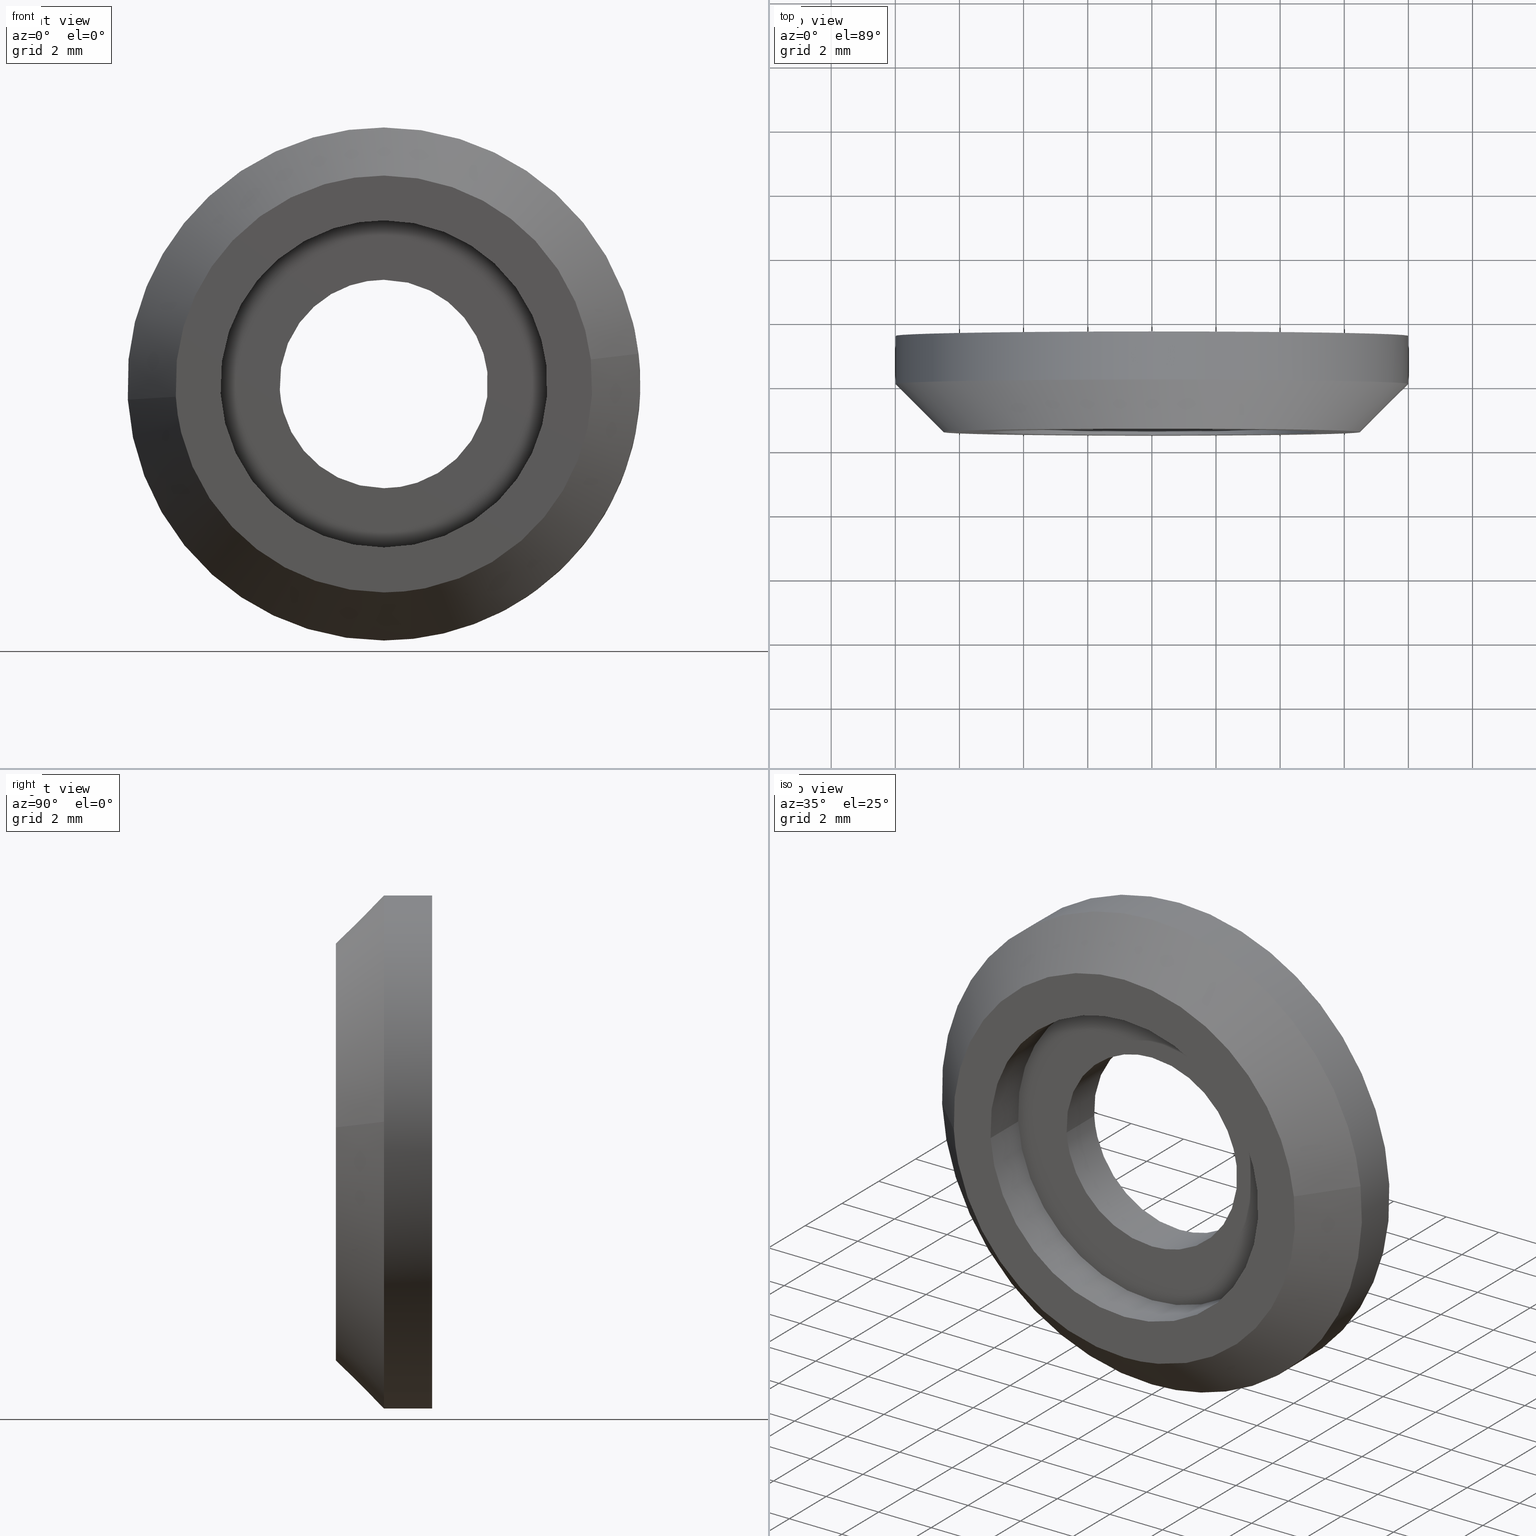
[diagram: canonical four-view strip — front | top / right | iso, engineering-drawing reading convention]
A machine part, canonical four-view strip (front | top / right | iso — engineering-drawing reading convention). The complete STEP part file that produces these views, byte-faithful:
ISO-10303-21;
HEADER;
/****************************************************************
 * Generated by software with PDE/Lib inside                    *
 * PDElib Version 4.4.1-0003, patched  Thursday August 19 11:58 *
 * International Technegroup Inc. (www.iti-oh.com)              *
 ****************************************************************/
FILE_DESCRIPTION((''),'2;1');
FILE_NAME('','2005-10-12T14:39:54',(''),(''),'','CADfix','');
FILE_SCHEMA(('AUTOMOTIVE_DESIGN'));
ENDSEC;
DATA;
#5=APPLICATION_CONTEXT('automotive design');
#6=APPLICATION_PROTOCOL_DEFINITION('Draft International Standard','automotive_design',1998,#5);
#7=PRODUCT_CONTEXT('None',#5,'mechanical');
#8=PRODUCT('facing ring','','None',(#7));
#9=PRODUCT_RELATED_PRODUCT_CATEGORY('part','description',(#8));
#10=PRODUCT_DEFINITION_FORMATION('None','None',#8);
#11=PRODUCT_DEFINITION_CONTEXT('part definition',#5,'design');
#12=PRODUCT_DEFINITION('None','None',#10,#11);
#18=(NAMED_UNIT(*)PLANE_ANGLE_UNIT()SI_UNIT($,.RADIAN.));
#19=DIMENSIONAL_EXPONENTS(0.0,0.0,0.0,0.0,0.0,0.0,0.0);
#20=PLANE_ANGLE_MEASURE_WITH_UNIT(PLANE_ANGLE_MEASURE(0.017453292500000),#18);
#24=(CONVERSION_BASED_UNIT('DEGREE',#20)NAMED_UNIT(#19)PLANE_ANGLE_UNIT());
#28=(NAMED_UNIT(*)SI_UNIT($,.STERADIAN.)SOLID_ANGLE_UNIT());
#32=(LENGTH_UNIT()NAMED_UNIT(*)SI_UNIT(.MILLI.,.METRE.));
#34=UNCERTAINTY_MEASURE_WITH_UNIT(LENGTH_MEASURE(0.001000000000000),#32,'DISTANCE_ACCURACY_VALUE','');
#36=(GEOMETRIC_REPRESENTATION_CONTEXT(3)GLOBAL_UNCERTAINTY_ASSIGNED_CONTEXT((#34))GLOBAL_UNIT_ASSIGNED_CONTEXT((#24,#28,#32))REPRESENTATION_CONTEXT('None','None'));
#37=AXIS2_PLACEMENT_3D('',#38,#39,#40);
#38=CARTESIAN_POINT('',(0.0,0.0,0.0));
#39=DIRECTION('',(0.0,0.0,1.0));
#40=DIRECTION('',(1.0,0.0,0.0));
#41=ADVANCED_BREP_SHAPE_REPRESENTATION('',(#37,#799),#36);
#42=PRODUCT_DEFINITION_SHAPE('','',#12);
#43=SHAPE_DEFINITION_REPRESENTATION(#42,#41);
#44=CARTESIAN_POINT('',(2.812943795132577,-0.037500000000000,-7.489148630213257));
#45=CARTESIAN_POINT('',(1.687915613723266,-0.037500000000000,-7.911712154921204));
#46=CARTESIAN_POINT('',(0.488388316278856,-0.037500000000000,-7.985078387374934));
#47=CARTESIAN_POINT('',(-7.496690071096078,-0.037500000000000,-8.473466703653790));
#48=CARTESIAN_POINT('',(-7.985078387374934,-0.037500000000000,-0.488388316278856));
#49=CARTESIAN_POINT('',(2.812943795132577,1.538437500000001,-7.489148630213257));
#50=CARTESIAN_POINT('',(1.687915613723266,1.538437500000000,-7.911712154921204));
#51=CARTESIAN_POINT('',(0.488388316278856,1.538437500000000,-7.985078387374934));
#52=CARTESIAN_POINT('',(-7.496690071096078,1.538437500000001,-8.473466703653790));
#53=CARTESIAN_POINT('',(-7.985078387374934,1.538437500000000,-0.488388316278856));
#61=(BOUNDED_SURFACE()B_SPLINE_SURFACE(2,1,((#44,#49),(#45,#50),(#46,#51),(#47,#52),(#48,#53)),.UNSPECIFIED.,.F.,.F.,.U.)B_SPLINE_SURFACE_WITH_KNOTS((3,2,3),(2,2),(0.0,2.650966799187807,15.905800795126840),(0.0,1.0),.UNSPECIFIED.)GEOMETRIC_REPRESENTATION_ITEM()RATIONAL_B_SPLINE_SURFACE(((0.906274169979695,0.906274169979695),(0.941421356237309,0.941421356237309),(1.0,1.0),(0.707106781186548,0.707106781186548),(1.0,1.0)))REPRESENTATION_ITEM('')SURFACE());
#62=CARTESIAN_POINT('',(2.812940292168581,2.698153E-014,-7.489149945933818));
#63=VERTEX_POINT('',#62);
#64=CARTESIAN_POINT('',(0.0,0.0,-8.0));
#65=VERTEX_POINT('',#64);
#66=CARTESIAN_POINT('',(2.812940292168581,2.698153E-014,-7.489149945933818));
#67=CARTESIAN_POINT('',(1.452857155873651,0.0,-8.0));
#68=CARTESIAN_POINT('',(0.0,0.0,-8.0));
#76=(BOUNDED_CURVE()B_SPLINE_CURVE(2,(#66,#67,#68),.UNSPECIFIED.,.F.,.U.)B_SPLINE_CURVE_WITH_KNOTS((3,3),(0.440284244778167,0.500000000000000),.UNSPECIFIED.)CURVE()GEOMETRIC_REPRESENTATION_ITEM()RATIONAL_B_SPLINE_CURVE((0.893499645046490,0.930038640956804,1.0))REPRESENTATION_ITEM(''));
#77=EDGE_CURVE('',#63,#65,#76,.T.);
#78=ORIENTED_EDGE('',*,*,#77,.T.);
#79=CARTESIAN_POINT('',(-7.985078387375068,4.340885E-013,-0.488388316280749));
#80=VERTEX_POINT('',#79);
#81=CARTESIAN_POINT('',(0.0,0.0,-8.0));
#82=CARTESIAN_POINT('',(-7.525648535238424,0.0,-8.0));
#83=CARTESIAN_POINT('',(-7.985078387375068,4.340885E-013,-0.488388316280749));
#91=(BOUNDED_CURVE()B_SPLINE_CURVE(2,(#81,#82,#83),.UNSPECIFIED.,.F.,.U.)B_SPLINE_CURVE_WITH_KNOTS((3,3),(0.500000000000000,0.739332962241805),.UNSPECIFIED.)CURVE()GEOMETRIC_REPRESENTATION_ITEM()RATIONAL_B_SPLINE_CURVE((1.0,0.719603993283357,0.976072041672852))REPRESENTATION_ITEM(''));
#92=EDGE_CURVE('',#65,#80,#91,.T.);
#93=ORIENTED_EDGE('',*,*,#92,.T.);
#94=CARTESIAN_POINT('',(-7.985078559988073,1.500000000000000,-0.488385494062622));
#95=VERTEX_POINT('',#94);
#96=CARTESIAN_POINT('',(-7.985078387375068,4.340885E-013,-0.488388316280749));
#97=CARTESIAN_POINT('',(-7.985078559988073,1.500000000000000,-0.488385494062622));
#98=QUASI_UNIFORM_CURVE('',1,(#96,#97),.UNSPECIFIED.,.F.,.U.);
#99=EDGE_CURVE('',#80,#95,#98,.T.);
#100=ORIENTED_EDGE('',*,*,#99,.T.);
#101=CARTESIAN_POINT('',(0.0,1.500000000000000,-8.0));
#102=VERTEX_POINT('',#101);
#103=CARTESIAN_POINT('',(0.0,1.500000000000000,-8.0));
#104=CARTESIAN_POINT('',(-7.525651200053410,1.500000000000001,-8.0));
#105=CARTESIAN_POINT('',(-7.985078559988073,1.500000000000000,-0.488385494062622));
#113=(BOUNDED_CURVE()B_SPLINE_CURVE(2,(#103,#104,#105),.UNSPECIFIED.,.F.,.U.)B_SPLINE_CURVE_WITH_KNOTS((3,3),(0.500000000000000,0.739333023226263),.UNSPECIFIED.)CURVE()GEOMETRIC_REPRESENTATION_ITEM()RATIONAL_B_SPLINE_CURVE((1.0,0.719603921835620,0.976072172374189))REPRESENTATION_ITEM(''));
#114=EDGE_CURVE('',#102,#95,#113,.T.);
#115=ORIENTED_EDGE('',*,*,#114,.F.);
#116=CARTESIAN_POINT('',(2.812940931960092,1.500000000000000,-7.489149705627076));
#117=VERTEX_POINT('',#116);
#118=CARTESIAN_POINT('',(2.812940931960093,1.500000000000000,-7.489149705627076));
#119=CARTESIAN_POINT('',(1.452857508860299,1.500000000000000,-8.0));
#120=CARTESIAN_POINT('',(0.0,1.500000000000000,-8.0));
#128=(BOUNDED_CURVE()B_SPLINE_CURVE(2,(#118,#119,#120),.UNSPECIFIED.,.F.,.U.)B_SPLINE_CURVE_WITH_KNOTS((3,3),(0.440284231284646,0.500000000000000),.UNSPECIFIED.)CURVE()GEOMETRIC_REPRESENTATION_ITEM()RATIONAL_B_SPLINE_CURVE((0.893499628533607,0.930038625148161,1.0))REPRESENTATION_ITEM(''));
#129=EDGE_CURVE('',#117,#102,#128,.T.);
#130=ORIENTED_EDGE('',*,*,#129,.F.);
#131=CARTESIAN_POINT('',(2.812940292168581,2.698153E-014,-7.489149945933818));
#132=CARTESIAN_POINT('',(2.812940931960092,1.500000000000000,-7.489149705627076));
#133=QUASI_UNIFORM_CURVE('',1,(#131,#132),.UNSPECIFIED.,.F.,.U.);
#134=EDGE_CURVE('',#63,#117,#133,.T.);
#135=ORIENTED_EDGE('',*,*,#134,.F.);
#136=EDGE_LOOP('',(#78,#93,#100,#115,#130,#135));
#137=FACE_OUTER_BOUND('',#136,.T.);
#138=ADVANCED_FACE('',(#137),#61,.T.);
#139=CARTESIAN_POINT('',(-7.985078387374934,-0.037500000000000,-0.488388316278856));
#140=CARTESIAN_POINT('',(-8.473466703653790,-0.037500000000000,7.496690071096078));
#141=CARTESIAN_POINT('',(-0.488388316278856,-0.037500000000000,7.985078387374934));
#142=CARTESIAN_POINT('',(7.496690071096078,-0.037500000000000,8.473466703653790));
#143=CARTESIAN_POINT('',(7.985078387374934,-0.037500000000000,0.488388316278856));
#144=CARTESIAN_POINT('',(8.345897782954735,-0.037500000000000,-5.410956654424521));
#145=CARTESIAN_POINT('',(2.812943795132577,-0.037500000000000,-7.489148630213257));
#146=CARTESIAN_POINT('',(-7.985078387374934,1.538437500000000,-0.488388316278856));
#147=CARTESIAN_POINT('',(-8.473466703653790,1.538437500000001,7.496690071096078));
#148=CARTESIAN_POINT('',(-0.488388316278856,1.538437500000000,7.985078387374934));
#149=CARTESIAN_POINT('',(7.496690071096078,1.538437500000001,8.473466703653790));
#150=CARTESIAN_POINT('',(7.985078387374934,1.538437500000000,0.488388316278856));
#151=CARTESIAN_POINT('',(8.345897782954735,1.538437500000001,-5.410956654424521));
#152=CARTESIAN_POINT('',(2.812943795132577,1.538437500000001,-7.489148630213257));
#160=(BOUNDED_SURFACE()B_SPLINE_SURFACE(2,1,((#139,#146),(#140,#147),(#141,#148),(#142,#149),(#143,#150),(#144,#151),(#145,#152)),.UNSPECIFIED.,.F.,.F.,.U.)B_SPLINE_SURFACE_WITH_KNOTS((3,2,2,3),(2,2),(0.0,13.254833995939039,26.509667991878072,37.113535188629299),(0.0,1.0),.UNSPECIFIED.)GEOMETRIC_REPRESENTATION_ITEM()RATIONAL_B_SPLINE_SURFACE(((1.0,1.0),(0.707106781186548,0.707106781186548),(1.0,1.0),(0.707106781186548,0.707106781186548),(1.0,1.0),(0.765685424949238,0.765685424949238),(0.906274169979695,0.906274169979695)))REPRESENTATION_ITEM('')SURFACE());
#161=CARTESIAN_POINT('',(7.944076210909435,1.578722E-012,0.944273877266574));
#162=VERTEX_POINT('',#161);
#163=CARTESIAN_POINT('',(7.944076210909435,1.578722E-012,0.944273877266574));
#164=CARTESIAN_POINT('',(8.0,0.0,0.473792957227731));
#165=CARTESIAN_POINT('',(8.0,0.0,0.0));
#166=CARTESIAN_POINT('',(8.0,0.0,-5.540879534021689));
#167=CARTESIAN_POINT('',(2.812940292168581,2.698153E-014,-7.489149945933818));
#175=(BOUNDED_CURVE()B_SPLINE_CURVE(2,(#163,#164,#165,#166,#167),.UNSPECIFIED.,.F.,.U.)B_SPLINE_CURVE_WITH_KNOTS((3,2,3),(0.229562473515120,0.250000000000000,0.440284244778167),.UNSPECIFIED.)CURVE()GEOMETRIC_REPRESENTATION_ITEM()RATIONAL_B_SPLINE_CURVE((0.956026754186858,0.976055948333033,1.0,0.777068140229744,0.893499645046490))REPRESENTATION_ITEM(''));
#176=EDGE_CURVE('',#162,#63,#175,.T.);
#177=ORIENTED_EDGE('',*,*,#176,.T.);
#178=ORIENTED_EDGE('',*,*,#134,.T.);
#179=CARTESIAN_POINT('',(0.0,1.500000000000000,8.0));
#180=VERTEX_POINT('',#179);
#181=CARTESIAN_POINT('',(0.0,1.500000000000000,8.0));
#182=CARTESIAN_POINT('',(8.0,1.500000000000000,8.0));
#183=CARTESIAN_POINT('',(8.0,1.500000000000000,0.0));
#184=CARTESIAN_POINT('',(8.000000000000002,1.500000000000000,-5.540879028380970));
#185=CARTESIAN_POINT('',(2.812940931960093,1.500000000000000,-7.489149705627076));
#193=(BOUNDED_CURVE()B_SPLINE_CURVE(2,(#181,#182,#183,#184,#185),.UNSPECIFIED.,.F.,.U.)B_SPLINE_CURVE_WITH_KNOTS((3,2,3),(0.0,0.250000000000000,0.440284231284646),.UNSPECIFIED.)CURVE()GEOMETRIC_REPRESENTATION_ITEM()RATIONAL_B_SPLINE_CURVE((1.0,0.707106781186548,1.0,0.777068156038386,0.893499628533607))REPRESENTATION_ITEM(''));
#194=EDGE_CURVE('',#180,#117,#193,.T.);
#195=ORIENTED_EDGE('',*,*,#194,.F.);
#196=CARTESIAN_POINT('',(-7.985078559988073,1.500000000000000,-0.488385494062622));
#197=CARTESIAN_POINT('',(-8.0,1.500000000000000,-0.244420691324024));
#198=CARTESIAN_POINT('',(-8.0,1.500000000000000,0.0));
#199=CARTESIAN_POINT('',(-8.0,1.500000000000000,8.0));
#200=CARTESIAN_POINT('',(0.0,1.500000000000000,8.0));
#208=(BOUNDED_CURVE()B_SPLINE_CURVE(2,(#196,#197,#198,#199,#200),.UNSPECIFIED.,.F.,.U.)B_SPLINE_CURVE_WITH_KNOTS((3,2,3),(0.739333023226263,0.750000000000000,1.0),.UNSPECIFIED.)CURVE()GEOMETRIC_REPRESENTATION_ITEM()RATIONAL_B_SPLINE_CURVE((0.976072172374189,0.987502859350927,1.0,0.707106781186548,1.0))REPRESENTATION_ITEM(''));
#209=EDGE_CURVE('',#95,#180,#208,.T.);
#210=ORIENTED_EDGE('',*,*,#209,.F.);
#211=ORIENTED_EDGE('',*,*,#99,.F.);
#212=CARTESIAN_POINT('',(0.0,0.0,8.0));
#213=VERTEX_POINT('',#212);
#214=CARTESIAN_POINT('',(-7.985078387375068,4.340885E-013,-0.488388316280749));
#215=CARTESIAN_POINT('',(-7.999999999999999,0.0,-0.244422106392477));
#216=CARTESIAN_POINT('',(-8.0,0.0,0.0));
#217=CARTESIAN_POINT('',(-8.0,0.0,8.0));
#218=CARTESIAN_POINT('',(0.0,0.0,8.0));
#226=(BOUNDED_CURVE()B_SPLINE_CURVE(2,(#214,#215,#216,#217,#218),.UNSPECIFIED.,.F.,.U.)B_SPLINE_CURVE_WITH_KNOTS((3,2,3),(0.739332962241806,0.750000000000000,1.0),.UNSPECIFIED.)CURVE()GEOMETRIC_REPRESENTATION_ITEM()RATIONAL_B_SPLINE_CURVE((0.976072041672854,0.987502787903192,1.0,0.707106781186548,1.0))REPRESENTATION_ITEM(''));
#227=EDGE_CURVE('',#80,#213,#226,.T.);
#228=ORIENTED_EDGE('',*,*,#227,.T.);
#229=CARTESIAN_POINT('',(0.0,0.0,8.0));
#230=CARTESIAN_POINT('',(7.105396207588751,0.0,8.0));
#231=CARTESIAN_POINT('',(7.944076210909435,1.578722E-012,0.944273877266574));
#239=(BOUNDED_CURVE()B_SPLINE_CURVE(2,(#229,#230,#231),.UNSPECIFIED.,.F.,.U.)B_SPLINE_CURVE_WITH_KNOTS((3,3),(0.0,0.229562473515120),.UNSPECIFIED.)CURVE()GEOMETRIC_REPRESENTATION_ITEM()RATIONAL_B_SPLINE_CURVE((1.0,0.731050832853514,0.956026754186859))REPRESENTATION_ITEM(''));
#240=EDGE_CURVE('',#213,#162,#239,.T.);
#241=ORIENTED_EDGE('',*,*,#240,.T.);
#242=EDGE_LOOP('',(#177,#178,#195,#210,#211,#228,#241));
#243=FACE_OUTER_BOUND('',#242,.T.);
#244=ADVANCED_FACE('',(#243),#160,.T.);
#245=CARTESIAN_POINT('',(3.227280960681916,-0.037500000000000,0.383611262634465));
#246=CARTESIAN_POINT('',(3.238259750207968,-0.037500000000000,0.291247868073427));
#247=CARTESIAN_POINT('',(3.243938094871067,-0.037500000000000,0.198407753488285));
#248=CARTESIAN_POINT('',(3.442345848359353,-0.037500000000000,-3.045530341382781));
#249=CARTESIAN_POINT('',(0.198407753488285,-0.037500000000000,-3.243938094871067));
#250=CARTESIAN_POINT('',(-3.045530341382781,-0.037500000000000,-3.442345848359353));
#251=CARTESIAN_POINT('',(-3.243938094871067,-0.037500000000000,-0.198407753488285));
#252=CARTESIAN_POINT('',(3.227280960681916,1.538437500000000,0.383611262634465));
#253=CARTESIAN_POINT('',(3.238259750207968,1.538437500000001,0.291247868073427));
#254=CARTESIAN_POINT('',(3.243938094871067,1.538437500000000,0.198407753488285));
#255=CARTESIAN_POINT('',(3.442345848359353,1.538437500000001,-3.045530341382781));
#256=CARTESIAN_POINT('',(0.198407753488285,1.538437500000000,-3.243938094871067));
#257=CARTESIAN_POINT('',(-3.045530341382781,1.538437500000001,-3.442345848359353));
#258=CARTESIAN_POINT('',(-3.243938094871067,1.538437500000000,-0.198407753488285));
#266=(BOUNDED_SURFACE()B_SPLINE_SURFACE(2,1,((#245,#252),(#246,#253),(#247,#254),(#248,#255),(#249,#256),(#250,#257),(#251,#258)),.UNSPECIFIED.,.F.,.F.,.U.)B_SPLINE_SURFACE_WITH_KNOTS((3,2,2,3),(2,2),(0.0,0.215391052434010,5.600167363284244,10.984943674134479),(0.0,1.0),.UNSPECIFIED.)GEOMETRIC_REPRESENTATION_ITEM()RATIONAL_B_SPLINE_SURFACE(((0.977505800795127,0.977505800795127),(0.988284271247462,0.988284271247462),(1.0,1.0),(0.707106781186548,0.707106781186548),(1.0,1.0),(0.707106781186548,0.707106781186548),(1.0,1.0)))REPRESENTATION_ITEM('')SURFACE());
#267=CARTESIAN_POINT('',(3.227281486811727,1.500000000000071,0.383606836308235));
#268=VERTEX_POINT('',#267);
#269=CARTESIAN_POINT('',(0.0,1.500000000000000,-3.250000000000000));
#270=VERTEX_POINT('',#269);
#271=CARTESIAN_POINT('',(3.227281486811727,1.500000000000071,0.383606836308235));
#272=CARTESIAN_POINT('',(3.250000000000000,1.500000000000000,0.192476152308770));
#273=CARTESIAN_POINT('',(3.250000000000000,1.500000000000000,0.0));
#274=CARTESIAN_POINT('',(3.250000000000000,1.500000000000000,-3.250000000000000));
#275=CARTESIAN_POINT('',(0.0,1.500000000000000,-3.250000000000000));
#283=(BOUNDED_CURVE()B_SPLINE_CURVE(2,(#271,#272,#273,#274,#275),.UNSPECIFIED.,.F.,.U.)B_SPLINE_CURVE_WITH_KNOTS((3,2,3),(0.229562705309400,0.250000000000000,0.500000000000000),.UNSPECIFIED.)CURVE()GEOMETRIC_REPRESENTATION_ITEM()RATIONAL_B_SPLINE_CURVE((0.956027208513637,0.976056219896924,1.0,0.707106781186547,1.0))REPRESENTATION_ITEM(''));
#284=EDGE_CURVE('',#268,#270,#283,.T.);
#285=ORIENTED_EDGE('',*,*,#284,.T.);
#286=CARTESIAN_POINT('',(-3.243938286670342,1.499999999999952,-0.198404617548119));
#287=VERTEX_POINT('',#286);
#288=CARTESIAN_POINT('',(0.0,1.500000000000000,-3.250000000000000));
#289=CARTESIAN_POINT('',(-3.057297678478167,1.500000000000000,-3.250000000000000));
#290=CARTESIAN_POINT('',(-3.243938286670342,1.499999999999951,-0.198404617548119));
#298=(BOUNDED_CURVE()B_SPLINE_CURVE(2,(#288,#289,#290),.UNSPECIFIED.,.F.,.U.)B_SPLINE_CURVE_WITH_KNOTS((3,3),(0.500000000000000,0.739333129044312),.UNSPECIFIED.)CURVE()GEOMETRIC_REPRESENTATION_ITEM()RATIONAL_B_SPLINE_CURVE((1.0,0.719603797862065,0.976072399162636))REPRESENTATION_ITEM(''));
#299=EDGE_CURVE('',#270,#287,#298,.T.);
#300=ORIENTED_EDGE('',*,*,#299,.T.);
#301=CARTESIAN_POINT('',(-3.243938284306497,3.469447E-017,-0.198404656197849));
#302=VERTEX_POINT('',#301);
#303=CARTESIAN_POINT('',(-3.243938284306497,3.469447E-017,-0.198404656197849));
#304=CARTESIAN_POINT('',(-3.243938286670342,1.499999999999952,-0.198404617548119));
#305=QUASI_UNIFORM_CURVE('',1,(#303,#304),.UNSPECIFIED.,.F.,.U.);
#306=EDGE_CURVE('',#302,#287,#305,.T.);
#307=ORIENTED_EDGE('',*,*,#306,.F.);
#308=CARTESIAN_POINT('',(0.0,0.0,-3.250000000000000));
#309=VERTEX_POINT('',#308);
#310=CARTESIAN_POINT('',(0.0,0.0,-3.250000000000000));
#311=CARTESIAN_POINT('',(-3.057297641984092,0.0,-3.250000000000000));
#312=CARTESIAN_POINT('',(-3.243938284306497,3.469447E-017,-0.198404656197849));
#320=(BOUNDED_CURVE()B_SPLINE_CURVE(2,(#310,#311,#312),.UNSPECIFIED.,.F.,.U.)B_SPLINE_CURVE_WITH_KNOTS((3,3),(0.500000000000000,0.739333126988512),.UNSPECIFIED.)CURVE()GEOMETRIC_REPRESENTATION_ITEM()RATIONAL_B_SPLINE_CURVE((1.0,0.719603800270584,0.976072394756659))REPRESENTATION_ITEM(''));
#321=EDGE_CURVE('',#309,#302,#320,.T.);
#322=ORIENTED_EDGE('',*,*,#321,.F.);
#323=CARTESIAN_POINT('',(3.227281480315944,3.194357E-017,0.383606890957840));
#324=VERTEX_POINT('',#323);
#325=CARTESIAN_POINT('',(3.227281480315944,3.194357E-017,0.383606890957840));
#326=CARTESIAN_POINT('',(3.250000000000000,0.0,0.192476179922436));
#327=CARTESIAN_POINT('',(3.250000000000000,0.0,0.0));
#328=CARTESIAN_POINT('',(3.250000000000000,0.0,-3.250000000000000));
#329=CARTESIAN_POINT('',(0.0,0.0,-3.250000000000000));
#337=(BOUNDED_CURVE()B_SPLINE_CURVE(2,(#325,#326,#327,#328,#329),.UNSPECIFIED.,.F.,.U.)B_SPLINE_CURVE_WITH_KNOTS((3,2,3),(0.229562702447560,0.250000000000000,0.500000000000000),.UNSPECIFIED.)CURVE()GEOMETRIC_REPRESENTATION_ITEM()RATIONAL_B_SPLINE_CURVE((0.956027202904301,0.976056216544070,1.0,0.707106781186547,1.0))REPRESENTATION_ITEM(''));
#338=EDGE_CURVE('',#324,#309,#337,.T.);
#339=ORIENTED_EDGE('',*,*,#338,.F.);
#340=CARTESIAN_POINT('',(3.227281480315944,3.194357E-017,0.383606890957840));
#341=CARTESIAN_POINT('',(3.227281486811727,1.500000000000071,0.383606836308235));
#342=QUASI_UNIFORM_CURVE('',1,(#340,#341),.UNSPECIFIED.,.F.,.U.);
#343=EDGE_CURVE('',#324,#268,#342,.T.);
#344=ORIENTED_EDGE('',*,*,#343,.T.);
#345=EDGE_LOOP('',(#285,#300,#307,#322,#339,#344));
#346=FACE_OUTER_BOUND('',#345,.T.);
#347=ADVANCED_FACE('',(#346),#266,.F.);
#348=CARTESIAN_POINT('',(-3.243938094871067,-0.037500000000000,-0.198407753488285));
#349=CARTESIAN_POINT('',(-3.442345848359353,-0.037500000000000,3.045530341382781));
#350=CARTESIAN_POINT('',(-0.198407753488285,-0.037500000000000,3.243938094871067));
#351=CARTESIAN_POINT('',(2.865016345228379,-0.037500000000000,3.431305139380714));
#352=CARTESIAN_POINT('',(3.227280960681916,-0.037500000000000,0.383611262634465));
#353=CARTESIAN_POINT('',(-3.243938094871067,1.538437500000000,-0.198407753488285));
#354=CARTESIAN_POINT('',(-3.442345848359353,1.538437500000001,3.045530341382781));
#355=CARTESIAN_POINT('',(-0.198407753488285,1.538437500000000,3.243938094871067));
#356=CARTESIAN_POINT('',(2.865016345228379,1.538437500000000,3.431305139380714));
#357=CARTESIAN_POINT('',(3.227280960681916,1.538437500000000,0.383611262634465));
#365=(BOUNDED_SURFACE()B_SPLINE_SURFACE(2,1,((#348,#353),(#349,#354),(#350,#355),(#351,#356),(#352,#357)),.UNSPECIFIED.,.F.,.F.,.U.)B_SPLINE_SURFACE_WITH_KNOTS((3,2,3),(2,2),(0.0,5.384776310850235,10.554161569266460),(0.0,1.0),.UNSPECIFIED.)GEOMETRIC_REPRESENTATION_ITEM()RATIONAL_B_SPLINE_SURFACE(((1.0,1.0),(0.707106781186548,0.707106781186548),(1.0,1.0),(0.718822509939086,0.718822509939086),(0.977505800795127,0.977505800795127)))REPRESENTATION_ITEM('')SURFACE());
#366=CARTESIAN_POINT('',(0.0,1.500000000000000,3.250000000000000));
#367=VERTEX_POINT('',#366);
#368=CARTESIAN_POINT('',(0.0,1.500000000000000,3.250000000000000));
#369=CARTESIAN_POINT('',(2.886571196239680,1.500000000000001,3.250000000000000));
#370=CARTESIAN_POINT('',(3.227281486811727,1.500000000000071,0.383606836308235));
#378=(BOUNDED_CURVE()B_SPLINE_CURVE(2,(#368,#369,#370),.UNSPECIFIED.,.F.,.U.)B_SPLINE_CURVE_WITH_KNOTS((3,3),(0.0,0.229562705309400),.UNSPECIFIED.)CURVE()GEOMETRIC_REPRESENTATION_ITEM()RATIONAL_B_SPLINE_CURVE((1.0,0.731050561289623,0.956027208513637))REPRESENTATION_ITEM(''));
#379=EDGE_CURVE('',#367,#268,#378,.T.);
#380=ORIENTED_EDGE('',*,*,#379,.T.);
#381=ORIENTED_EDGE('',*,*,#343,.F.);
#382=CARTESIAN_POINT('',(0.0,0.0,3.250000000000000));
#383=VERTEX_POINT('',#382);
#384=CARTESIAN_POINT('',(0.0,0.0,3.250000000000000));
#385=CARTESIAN_POINT('',(2.886571147015454,0.0,3.250000000000000));
#386=CARTESIAN_POINT('',(3.227281480315944,3.194357E-017,0.383606890957840));
#394=(BOUNDED_CURVE()B_SPLINE_CURVE(2,(#384,#385,#386),.UNSPECIFIED.,.F.,.U.)B_SPLINE_CURVE_WITH_KNOTS((3,3),(0.0,0.229562702447560),.UNSPECIFIED.)CURVE()GEOMETRIC_REPRESENTATION_ITEM()RATIONAL_B_SPLINE_CURVE((1.0,0.731050564642477,0.956027202904301))REPRESENTATION_ITEM(''));
#395=EDGE_CURVE('',#383,#324,#394,.T.);
#396=ORIENTED_EDGE('',*,*,#395,.F.);
#397=CARTESIAN_POINT('',(-3.243938284306497,3.469447E-017,-0.198404656197849));
#398=CARTESIAN_POINT('',(-3.250000000000000,0.0,-0.099294927733059));
#399=CARTESIAN_POINT('',(-3.250000000000000,0.0,0.0));
#400=CARTESIAN_POINT('',(-3.250000000000000,0.0,3.250000000000000));
#401=CARTESIAN_POINT('',(0.0,0.0,3.250000000000000));
#409=(BOUNDED_CURVE()B_SPLINE_CURVE(2,(#397,#398,#399,#400,#401),.UNSPECIFIED.,.F.,.U.)B_SPLINE_CURVE_WITH_KNOTS((3,2,3),(0.739333126988512,0.750000000000000,1.0),.UNSPECIFIED.)CURVE()GEOMETRIC_REPRESENTATION_ITEM()RATIONAL_B_SPLINE_CURVE((0.976072394756659,0.987502980915963,1.0,0.707106781186547,1.0))REPRESENTATION_ITEM(''));
#410=EDGE_CURVE('',#302,#383,#409,.T.);
#411=ORIENTED_EDGE('',*,*,#410,.F.);
#412=ORIENTED_EDGE('',*,*,#306,.T.);
#413=CARTESIAN_POINT('',(-3.243938286670342,1.499999999999951,-0.198404617548119));
#414=CARTESIAN_POINT('',(-3.250000000000000,1.500000000000000,-0.099294908354011));
#415=CARTESIAN_POINT('',(-3.250000000000000,1.500000000000000,0.0));
#416=CARTESIAN_POINT('',(-3.250000000000000,1.500000000000000,3.250000000000000));
#417=CARTESIAN_POINT('',(0.0,1.500000000000000,3.250000000000000));
#425=(BOUNDED_CURVE()B_SPLINE_CURVE(2,(#413,#414,#415,#416,#417),.UNSPECIFIED.,.F.,.U.)B_SPLINE_CURVE_WITH_KNOTS((3,2,3),(0.739333129044312,0.750000000000000,1.0),.UNSPECIFIED.)CURVE()GEOMETRIC_REPRESENTATION_ITEM()RATIONAL_B_SPLINE_CURVE((0.976072399162636,0.987502983324483,1.0,0.707106781186547,1.0))REPRESENTATION_ITEM(''));
#426=EDGE_CURVE('',#287,#367,#425,.T.);
#427=ORIENTED_EDGE('',*,*,#426,.T.);
#428=EDGE_LOOP('',(#380,#381,#396,#411,#412,#427));
#429=FACE_OUTER_BOUND('',#428,.T.);
#430=ADVANCED_FACE('',(#429),#365,.F.);
#431=CARTESIAN_POINT('',(5.064348584454699,-1.537500000000001,0.601974596749468));
#432=CARTESIAN_POINT('',(5.081576838787889,-1.537500000000000,0.457035116053686));
#433=CARTESIAN_POINT('',(5.090487471951521,-1.537500000000000,0.311347551627771));
#434=CARTESIAN_POINT('',(5.401835023579292,-1.537500000000000,-4.779139920323751));
#435=CARTESIAN_POINT('',(0.311347551627771,-1.537500000000000,-5.090487471951521));
#436=CARTESIAN_POINT('',(-4.779139920323751,-1.537500000000000,-5.401835023579292));
#437=CARTESIAN_POINT('',(-5.090487471951521,-1.537500000000000,-0.311347551627771));
#438=CARTESIAN_POINT('',(5.064348584454699,0.038437500000000,0.601974596749468));
#439=CARTESIAN_POINT('',(5.081576838787889,0.038437500000000,0.457035116053686));
#440=CARTESIAN_POINT('',(5.090487471951521,0.038437500000000,0.311347551627771));
#441=CARTESIAN_POINT('',(5.401835023579292,0.038437500000000,-4.779139920323751));
#442=CARTESIAN_POINT('',(0.311347551627771,0.038437500000000,-5.090487471951521));
#443=CARTESIAN_POINT('',(-4.779139920323751,0.038437500000000,-5.401835023579292));
#444=CARTESIAN_POINT('',(-5.090487471951521,0.038437500000000,-0.311347551627771));
#452=(BOUNDED_SURFACE()B_SPLINE_SURFACE(2,1,((#431,#438),(#432,#439),(#433,#440),(#434,#441),(#435,#442),(#436,#443),(#437,#444)),.UNSPECIFIED.,.F.,.F.,.U.)B_SPLINE_SURFACE_WITH_KNOTS((3,2,2,3),(2,2),(0.0,0.337998266896446,8.787954939307584,17.237911611718719),(0.0,1.0),.UNSPECIFIED.)GEOMETRIC_REPRESENTATION_ITEM()RATIONAL_B_SPLINE_SURFACE(((0.977505800795127,0.977505800795127),(0.988284271247462,0.988284271247462),(1.0,1.0),(0.707106781186548,0.707106781186548),(1.0,1.0),(0.707106781186548,0.707106781186548),(1.0,1.0)))REPRESENTATION_ITEM('')SURFACE());
#453=CARTESIAN_POINT('',(5.064348875071119,-2.917867E-014,0.601972151814212));
#454=VERTEX_POINT('',#453);
#455=CARTESIAN_POINT('',(0.0,0.0,-5.100000000000001));
#456=VERTEX_POINT('',#455);
#457=CARTESIAN_POINT('',(5.064348875071119,-2.917867E-014,0.601972151814212));
#458=CARTESIAN_POINT('',(5.100000000000001,0.0,0.302041774833430));
#459=CARTESIAN_POINT('',(5.100000000000001,0.0,0.0));
#460=CARTESIAN_POINT('',(5.100000000000001,0.0,-5.100000000000001));
#461=CARTESIAN_POINT('',(0.0,0.0,-5.100000000000001));
#469=(BOUNDED_CURVE()B_SPLINE_CURVE(2,(#457,#458,#459,#460,#461),.UNSPECIFIED.,.F.,.U.)B_SPLINE_CURVE_WITH_KNOTS((3,2,3),(0.229562555106003,0.250000000000000,0.500000000000000),.UNSPECIFIED.)CURVE()GEOMETRIC_REPRESENTATION_ITEM()RATIONAL_B_SPLINE_CURVE((0.956026914108389,0.976056043922698,1.0,0.707106781186548,1.0))REPRESENTATION_ITEM(''));
#470=EDGE_CURVE('',#454,#456,#469,.T.);
#471=ORIENTED_EDGE('',*,*,#470,.T.);
#472=CARTESIAN_POINT('',(-5.090487553960555,9.225259E-015,-0.311346210786117));
#473=VERTEX_POINT('',#472);
#474=CARTESIAN_POINT('',(0.0,0.0,-5.100000000000001));
#475=CARTESIAN_POINT('',(-4.797602207275556,0.0,-5.100000000000001));
#476=CARTESIAN_POINT('',(-5.090487553960555,9.225259E-015,-0.311346210786117));
#484=(BOUNDED_CURVE()B_SPLINE_CURVE(2,(#474,#475,#476),.UNSPECIFIED.,.F.,.U.)B_SPLINE_CURVE_WITH_KNOTS((3,3),(0.500000000000000,0.739333007691040),.UNSPECIFIED.)CURVE()GEOMETRIC_REPRESENTATION_ITEM()RATIONAL_B_SPLINE_CURVE((1.0,0.719603940036266,0.976072139079234))REPRESENTATION_ITEM(''));
#485=EDGE_CURVE('',#456,#473,#484,.T.);
#486=ORIENTED_EDGE('',*,*,#485,.T.);
#487=CARTESIAN_POINT('',(-5.090487552947563,-1.500000000000000,-0.311346227348550));
#488=VERTEX_POINT('',#487);
#489=CARTESIAN_POINT('',(-5.090487552947563,-1.500000000000000,-0.311346227348550));
#490=CARTESIAN_POINT('',(-5.090487553960555,9.225259E-015,-0.311346210786117));
#491=QUASI_UNIFORM_CURVE('',1,(#489,#490),.UNSPECIFIED.,.F.,.U.);
#492=EDGE_CURVE('',#488,#473,#491,.T.);
#493=ORIENTED_EDGE('',*,*,#492,.F.);
#494=CARTESIAN_POINT('',(0.0,-1.500000000000000,-5.100000000000001));
#495=VERTEX_POINT('',#494);
#496=CARTESIAN_POINT('',(0.0,-1.500000000000000,-5.100000000000001));
#497=CARTESIAN_POINT('',(-4.797602191636886,-1.500000000000000,-5.100000000000001));
#498=CARTESIAN_POINT('',(-5.090487552947563,-1.500000000000000,-0.311346227348550));
#506=(BOUNDED_CURVE()B_SPLINE_CURVE(2,(#496,#497,#498),.UNSPECIFIED.,.F.,.U.)B_SPLINE_CURVE_WITH_KNOTS((3,3),(0.500000000000000,0.739333007129641),.UNSPECIFIED.)CURVE()GEOMETRIC_REPRESENTATION_ITEM()RATIONAL_B_SPLINE_CURVE((1.0,0.719603940693986,0.976072137876048))REPRESENTATION_ITEM(''));
#507=EDGE_CURVE('',#495,#488,#506,.T.);
#508=ORIENTED_EDGE('',*,*,#507,.F.);
#509=CARTESIAN_POINT('',(5.064348871488670,-1.500000000000000,0.601972181953224));
#510=VERTEX_POINT('',#509);
#511=CARTESIAN_POINT('',(5.064348871488670,-1.500000000000000,0.601972181953224));
#512=CARTESIAN_POINT('',(5.100000000000001,-1.500000000000000,0.302041790062247));
#513=CARTESIAN_POINT('',(5.100000000000001,-1.500000000000000,0.0));
#514=CARTESIAN_POINT('',(5.100000000000001,-1.500000000000000,-5.100000000000001));
#515=CARTESIAN_POINT('',(0.0,-1.500000000000000,-5.100000000000001));
#523=(BOUNDED_CURVE()B_SPLINE_CURVE(2,(#511,#512,#513,#514,#515),.UNSPECIFIED.,.F.,.U.)B_SPLINE_CURVE_WITH_KNOTS((3,2,3),(0.229562554100228,0.250000000000000,0.500000000000000),.UNSPECIFIED.)CURVE()GEOMETRIC_REPRESENTATION_ITEM()RATIONAL_B_SPLINE_CURVE((0.956026912137029,0.976056042744360,1.0,0.707106781186548,1.0))REPRESENTATION_ITEM(''));
#524=EDGE_CURVE('',#510,#495,#523,.T.);
#525=ORIENTED_EDGE('',*,*,#524,.F.);
#526=CARTESIAN_POINT('',(5.064348871488670,-1.500000000000000,0.601972181953224));
#527=CARTESIAN_POINT('',(5.064348875071119,-2.917867E-014,0.601972151814212));
#528=QUASI_UNIFORM_CURVE('',1,(#526,#527),.UNSPECIFIED.,.F.,.U.);
#529=EDGE_CURVE('',#510,#454,#528,.T.);
#530=ORIENTED_EDGE('',*,*,#529,.T.);
#531=EDGE_LOOP('',(#471,#486,#493,#508,#525,#530));
#532=FACE_OUTER_BOUND('',#531,.T.);
#533=ADVANCED_FACE('',(#532),#452,.F.);
#534=CARTESIAN_POINT('',(-5.090487471951521,-1.537500000000000,-0.311347551627771));
#535=CARTESIAN_POINT('',(-5.401835023579292,-1.537500000000000,4.779139920323751));
#536=CARTESIAN_POINT('',(-0.311347551627771,-1.537500000000000,5.090487471951521));
#537=CARTESIAN_POINT('',(4.495871803281456,-1.537500000000000,5.384509603335889));
#538=CARTESIAN_POINT('',(5.064348584454699,-1.537500000000001,0.601974596749468));
#539=CARTESIAN_POINT('',(-5.090487471951521,0.038437500000000,-0.311347551627771));
#540=CARTESIAN_POINT('',(-5.401835023579292,0.038437500000000,4.779139920323751));
#541=CARTESIAN_POINT('',(-0.311347551627771,0.038437500000000,5.090487471951521));
#542=CARTESIAN_POINT('',(4.495871803281456,0.038437500000000,5.384509603335889));
#543=CARTESIAN_POINT('',(5.064348584454699,0.038437500000000,0.601974596749468));
#551=(BOUNDED_SURFACE()B_SPLINE_SURFACE(2,1,((#534,#539),(#535,#540),(#536,#541),(#537,#542),(#538,#543)),.UNSPECIFIED.,.F.,.F.,.U.)B_SPLINE_SURFACE_WITH_KNOTS((3,2,3),(2,2),(0.0,8.449956672411139,16.561915077925828),(0.0,1.0),.UNSPECIFIED.)GEOMETRIC_REPRESENTATION_ITEM()RATIONAL_B_SPLINE_SURFACE(((1.0,1.0),(0.707106781186548,0.707106781186548),(1.0,1.0),(0.718822509939086,0.718822509939086),(0.977505800795127,0.977505800795127)))REPRESENTATION_ITEM('')SURFACE());
#552=CARTESIAN_POINT('',(0.0,0.0,5.100000000000001));
#553=VERTEX_POINT('',#552);
#554=CARTESIAN_POINT('',(0.0,0.0,5.100000000000001));
#555=CARTESIAN_POINT('',(4.529692284562907,0.0,5.100000000000001));
#556=CARTESIAN_POINT('',(5.064348875071119,-2.917867E-014,0.601972151814212));
#564=(BOUNDED_CURVE()B_SPLINE_CURVE(2,(#554,#555,#556),.UNSPECIFIED.,.F.,.U.)B_SPLINE_CURVE_WITH_KNOTS((3,3),(0.0,0.229562555106003),.UNSPECIFIED.)CURVE()GEOMETRIC_REPRESENTATION_ITEM()RATIONAL_B_SPLINE_CURVE((1.0,0.731050737263850,0.956026914108389))REPRESENTATION_ITEM(''));
#565=EDGE_CURVE('',#553,#454,#564,.T.);
#566=ORIENTED_EDGE('',*,*,#565,.T.);
#567=ORIENTED_EDGE('',*,*,#529,.F.);
#568=CARTESIAN_POINT('',(0.0,-1.500000000000000,5.100000000000001));
#569=VERTEX_POINT('',#568);
#570=CARTESIAN_POINT('',(0.0,-1.500000000000000,5.100000000000001));
#571=CARTESIAN_POINT('',(4.529692257415985,-1.500000000000000,5.100000000000000));
#572=CARTESIAN_POINT('',(5.064348871488670,-1.500000000000000,0.601972181953224));
#580=(BOUNDED_CURVE()B_SPLINE_CURVE(2,(#570,#571,#572),.UNSPECIFIED.,.F.,.U.)B_SPLINE_CURVE_WITH_KNOTS((3,3),(0.0,0.229562554100228),.UNSPECIFIED.)CURVE()GEOMETRIC_REPRESENTATION_ITEM()RATIONAL_B_SPLINE_CURVE((1.0,0.731050738442187,0.956026912137029))REPRESENTATION_ITEM(''));
#581=EDGE_CURVE('',#569,#510,#580,.T.);
#582=ORIENTED_EDGE('',*,*,#581,.F.);
#583=CARTESIAN_POINT('',(-5.090487552947563,-1.500000000000000,-0.311346227348550));
#584=CARTESIAN_POINT('',(-5.100000000000001,-1.500000000000000,-0.155818428826631));
#585=CARTESIAN_POINT('',(-5.100000000000001,-1.500000000000000,0.0));
#586=CARTESIAN_POINT('',(-5.100000000000001,-1.500000000000000,5.100000000000001));
#587=CARTESIAN_POINT('',(0.0,-1.500000000000000,5.100000000000001));
#595=(BOUNDED_CURVE()B_SPLINE_CURVE(2,(#583,#584,#585,#586,#587),.UNSPECIFIED.,.F.,.U.)B_SPLINE_CURVE_WITH_KNOTS((3,2,3),(0.739333007129641,0.750000000000000,1.0),.UNSPECIFIED.)CURVE()GEOMETRIC_REPRESENTATION_ITEM()RATIONAL_B_SPLINE_CURVE((0.976072137876048,0.987502840492562,1.0,0.707106781186548,1.0))REPRESENTATION_ITEM(''));
#596=EDGE_CURVE('',#488,#569,#595,.T.);
#597=ORIENTED_EDGE('',*,*,#596,.F.);
#598=ORIENTED_EDGE('',*,*,#492,.T.);
#599=CARTESIAN_POINT('',(-5.090487553960555,9.225259E-015,-0.311346210786117));
#600=CARTESIAN_POINT('',(-5.100000000000001,0.0,-0.155818420522195));
#601=CARTESIAN_POINT('',(-5.100000000000001,0.0,0.0));
#602=CARTESIAN_POINT('',(-5.100000000000001,0.0,5.100000000000001));
#603=CARTESIAN_POINT('',(0.0,0.0,5.100000000000001));
#611=(BOUNDED_CURVE()B_SPLINE_CURVE(2,(#599,#600,#601,#602,#603),.UNSPECIFIED.,.F.,.U.)B_SPLINE_CURVE_WITH_KNOTS((3,2,3),(0.739333007691040,0.750000000000000,1.0),.UNSPECIFIED.)CURVE()GEOMETRIC_REPRESENTATION_ITEM()RATIONAL_B_SPLINE_CURVE((0.976072139079234,0.987502841150282,1.0,0.707106781186548,1.0))REPRESENTATION_ITEM(''));
#612=EDGE_CURVE('',#473,#553,#611,.T.);
#613=ORIENTED_EDGE('',*,*,#612,.T.);
#614=EDGE_LOOP('',(#566,#567,#582,#597,#598,#613));
#615=FACE_OUTER_BOUND('',#614,.T.);
#616=ADVANCED_FACE('',(#615),#551,.F.);
#617=CARTESIAN_POINT('',(6.417324064125192,-1.537500000000001,0.762796241469301));
#618=CARTESIAN_POINT('',(6.439154964836612,-1.537500000000000,0.579135183822931));
#619=CARTESIAN_POINT('',(6.450446134801312,-1.537500000000000,0.394526186744013));
#620=CARTESIAN_POINT('',(6.844972321545325,-1.537500000000000,-6.055919948057299));
#621=CARTESIAN_POINT('',(0.394526186744013,-1.537500000000000,-6.450446134801312));
#622=CARTESIAN_POINT('',(-6.055919948057299,-1.537500000000000,-6.844972321545325));
#623=CARTESIAN_POINT('',(-6.450446134801312,-1.537500000000000,-0.394526186744013));
#624=CARTESIAN_POINT('',(7.982245014578935,0.038437500000000,0.948810818148687));
#625=CARTESIAN_POINT('',(8.009399572557651,0.038437500000000,0.720362395235844));
#626=CARTESIAN_POINT('',(8.023444193689274,0.038437500000000,0.490734869517227));
#627=CARTESIAN_POINT('',(8.514179063206502,0.038437500000000,-7.532709324172047));
#628=CARTESIAN_POINT('',(0.490734869517227,0.038437500000000,-8.023444193689274));
#629=CARTESIAN_POINT('',(-7.532709324172047,0.038437500000000,-8.514179063206502));
#630=CARTESIAN_POINT('',(-8.023444193689274,0.038437500000000,-0.490734869517227));
#638=(BOUNDED_SURFACE()B_SPLINE_SURFACE(2,1,((#617,#624),(#618,#625),(#619,#626),(#620,#627),(#621,#628),(#622,#629),(#623,#630)),.UNSPECIFIED.,.F.,.F.,.U.)B_SPLINE_SURFACE_WITH_KNOTS((3,2,2,3),(2,2),(0.0,0.532740773246157,13.851260104400060,27.169779435553959),(0.0,2.228712185952352),.UNSPECIFIED.)GEOMETRIC_REPRESENTATION_ITEM()RATIONAL_B_SPLINE_SURFACE(((0.977505800795127,0.977505800795127),(0.988284271247462,0.988284271247462),(1.0,1.0),(0.707106781186548,0.707106781186548),(1.0,1.0),(0.707106781186548,0.707106781186548),(1.0,1.0)))REPRESENTATION_ITEM('')SURFACE());
#639=CARTESIAN_POINT('',(6.454561921363927,-1.499999999998526,0.767222525280608));
#640=VERTEX_POINT('',#639);
#641=CARTESIAN_POINT('',(0.0,-1.500000000000000,-6.500000000000000));
#642=VERTEX_POINT('',#641);
#643=CARTESIAN_POINT('',(6.454561921363927,-1.499999999998526,0.767222525280608));
#644=CARTESIAN_POINT('',(6.500000000000000,-1.500000000000000,0.384956777749042));
#645=CARTESIAN_POINT('',(6.500000000000000,-1.500000000000000,0.0));
#646=CARTESIAN_POINT('',(6.500000000000000,-1.500000000000000,-6.500000000000000));
#647=CARTESIAN_POINT('',(0.0,-1.500000000000000,-6.500000000000000));
#655=(BOUNDED_CURVE()B_SPLINE_CURVE(2,(#643,#644,#645,#646,#647),.UNSPECIFIED.,.F.,.U.)B_SPLINE_CURVE_WITH_KNOTS((3,2,3),(0.229562473515042,0.250000000000000,0.500000000000000),.UNSPECIFIED.)CURVE()GEOMETRIC_REPRESENTATION_ITEM()RATIONAL_B_SPLINE_CURVE((0.956026754186705,0.976055948332942,1.0,0.707106781186547,1.0))REPRESENTATION_ITEM(''));
#656=EDGE_CURVE('',#640,#642,#655,.T.);
#657=ORIENTED_EDGE('',*,*,#656,.T.);
#658=CARTESIAN_POINT('',(-6.487874580296806,-1.500001690434758,-0.396814131159551));
#659=VERTEX_POINT('',#658);
#660=CARTESIAN_POINT('',(0.0,-1.500000000000000,-6.500000000000000));
#661=CARTESIAN_POINT('',(-6.114589792884781,-1.500000845217379,-6.499999948400873));
#662=CARTESIAN_POINT('',(-6.487874580296806,-1.500001690434758,-0.396814131159551));
#670=(BOUNDED_CURVE()B_SPLINE_CURVE(2,(#660,#661,#662),.UNSPECIFIED.,.F.,.U.)B_SPLINE_CURVE_WITH_KNOTS((3,3),(0.500000000000000,0.739332996087603),.UNSPECIFIED.)CURVE()GEOMETRIC_REPRESENTATION_ITEM()RATIONAL_B_SPLINE_CURVE((1.0,0.719603953630538,0.976072114210851))REPRESENTATION_ITEM(''));
#671=EDGE_CURVE('',#642,#659,#670,.T.);
#672=ORIENTED_EDGE('',*,*,#671,.T.);
#673=CARTESIAN_POINT('',(-6.487874580296806,-1.500001690434758,-0.396814131159551));
#674=CARTESIAN_POINT('',(-7.985078387375068,4.340885E-013,-0.488388316280749));
#675=QUASI_UNIFORM_CURVE('',1,(#673,#674),.UNSPECIFIED.,.F.,.U.);
#676=EDGE_CURVE('',#659,#80,#675,.T.);
#677=ORIENTED_EDGE('',*,*,#676,.T.);
#678=ORIENTED_EDGE('',*,*,#92,.F.);
#679=ORIENTED_EDGE('',*,*,#77,.F.);
#680=ORIENTED_EDGE('',*,*,#176,.F.);
#681=CARTESIAN_POINT('',(6.454561921363927,-1.499999999998526,0.767222525280608));
#682=CARTESIAN_POINT('',(7.944076210909435,1.578722E-012,0.944273877266574));
#683=QUASI_UNIFORM_CURVE('',1,(#681,#682),.UNSPECIFIED.,.F.,.U.);
#684=EDGE_CURVE('',#640,#162,#683,.T.);
#685=ORIENTED_EDGE('',*,*,#684,.F.);
#686=EDGE_LOOP('',(#657,#672,#677,#678,#679,#680,#685));
#687=FACE_OUTER_BOUND('',#686,.T.);
#688=ADVANCED_FACE('',(#687),#638,.T.);
#689=CARTESIAN_POINT('',(-6.450446134801312,-1.537500000000000,-0.394526186744013));
#690=CARTESIAN_POINT('',(-6.844972321545325,-1.537500000000000,6.055919948057299));
#691=CARTESIAN_POINT('',(-0.394526186744013,-1.537500000000000,6.450446134801312));
#692=CARTESIAN_POINT('',(5.696974809550273,-1.537500000000000,6.823018296383956));
#693=CARTESIAN_POINT('',(6.417324064125192,-1.537500000000001,0.762796241469301));
#694=CARTESIAN_POINT('',(-8.023444193689274,0.038437500000000,-0.490734869517227));
#695=CARTESIAN_POINT('',(-8.514179063206502,0.038437500000000,7.532709324172047));
#696=CARTESIAN_POINT('',(-0.490734869517227,0.038437500000000,8.023444193689274));
#697=CARTESIAN_POINT('',(7.086232254645150,0.038437500000000,8.486871355797126));
#698=CARTESIAN_POINT('',(7.982245014578935,0.038437500000000,0.948810818148687));
#706=(BOUNDED_SURFACE()B_SPLINE_SURFACE(2,1,((#689,#694),(#690,#695),(#691,#696),(#692,#697),(#693,#698)),.UNSPECIFIED.,.F.,.F.,.U.)B_SPLINE_SURFACE_WITH_KNOTS((3,2,3),(2,2),(0.0,13.318519331153899,26.104297889061652),(0.0,2.228712185952351),.UNSPECIFIED.)GEOMETRIC_REPRESENTATION_ITEM()RATIONAL_B_SPLINE_SURFACE(((1.0,1.0),(0.707106781186548,0.707106781186548),(1.0,1.0),(0.718822509939086,0.718822509939086),(0.977505800795127,0.977505800795127)))REPRESENTATION_ITEM('')SURFACE());
#707=CARTESIAN_POINT('',(0.0,-1.500000000000000,6.500000000000000));
#708=VERTEX_POINT('',#707);
#709=CARTESIAN_POINT('',(0.0,-1.500000000000000,6.500000000000000));
#710=CARTESIAN_POINT('',(5.773134418663169,-1.500000000000000,6.500000000000001));
#711=CARTESIAN_POINT('',(6.454561921363927,-1.499999999998527,0.767222525280608));
#719=(BOUNDED_CURVE()B_SPLINE_CURVE(2,(#709,#710,#711),.UNSPECIFIED.,.F.,.U.)B_SPLINE_CURVE_WITH_KNOTS((3,3),(0.0,0.229562473515042),.UNSPECIFIED.)CURVE()GEOMETRIC_REPRESENTATION_ITEM()RATIONAL_B_SPLINE_CURVE((1.0,0.731050832853606,0.956026754186705))REPRESENTATION_ITEM(''));
#720=EDGE_CURVE('',#708,#640,#719,.T.);
#721=ORIENTED_EDGE('',*,*,#720,.T.);
#722=ORIENTED_EDGE('',*,*,#684,.T.);
#723=ORIENTED_EDGE('',*,*,#240,.F.);
#724=ORIENTED_EDGE('',*,*,#227,.F.);
#725=ORIENTED_EDGE('',*,*,#676,.F.);
#726=CARTESIAN_POINT('',(-6.487874580296806,-1.500001690434758,-0.396814131159551));
#727=CARTESIAN_POINT('',(-6.499998336965251,-1.500001666142295,-0.198592221632064));
#728=CARTESIAN_POINT('',(-6.499998362740730,-1.500001640318651,0.000000100138745));
#729=CARTESIAN_POINT('',(-6.499999206381683,-1.500000795101273,6.500000048539619));
#730=CARTESIAN_POINT('',(0.0,-1.500000000000000,6.500000000000000));
#738=(BOUNDED_CURVE()B_SPLINE_CURVE(2,(#726,#727,#728,#729,#730),.UNSPECIFIED.,.F.,.U.)B_SPLINE_CURVE_WITH_KNOTS((3,2,3),(0.739332996087603,0.750000000000000,1.0),.UNSPECIFIED.)CURVE()GEOMETRIC_REPRESENTATION_ITEM()RATIONAL_B_SPLINE_CURVE((0.976072114210851,0.987502827556010,1.0,0.707106781186547,1.0))REPRESENTATION_ITEM(''));
#739=EDGE_CURVE('',#659,#708,#738,.T.);
#740=ORIENTED_EDGE('',*,*,#739,.T.);
#741=EDGE_LOOP('',(#721,#722,#723,#724,#725,#740));
#742=FACE_OUTER_BOUND('',#741,.T.);
#743=ADVANCED_FACE('',(#742),#706,.T.);
#744=CARTESIAN_POINT('',(-8.799005420873163,1.500000000000000,-8.799199968988896));
#745=CARTESIAN_POINT('',(-8.799005420873163,1.500000000000000,8.799200398142338));
#746=CARTESIAN_POINT('',(8.799048479268549,1.500000000000000,-8.799199968988896));
#747=CARTESIAN_POINT('',(8.799048479268549,1.500000000000000,8.799200398142338));
#748=B_SPLINE_SURFACE_WITH_KNOTS('',1,1,((#744,#746),(#745,#747)),.UNSPECIFIED.,.F.,.F.,.U.,(2,2),(2,2),(0.0,17.598400367131230),(0.0,17.598053900141711),.UNSPECIFIED.);
#749=ORIENTED_EDGE('',*,*,#194,.T.);
#750=ORIENTED_EDGE('',*,*,#129,.T.);
#751=ORIENTED_EDGE('',*,*,#114,.T.);
#752=ORIENTED_EDGE('',*,*,#209,.T.);
#753=EDGE_LOOP('',(#749,#750,#751,#752));
#754=FACE_OUTER_BOUND('',#753,.T.);
#755=ORIENTED_EDGE('',*,*,#299,.F.);
#756=ORIENTED_EDGE('',*,*,#284,.F.);
#757=ORIENTED_EDGE('',*,*,#379,.F.);
#758=ORIENTED_EDGE('',*,*,#426,.F.);
#759=EDGE_LOOP('',(#755,#756,#757,#758));
#760=FACE_BOUND('',#759,.T.);
#761=ADVANCED_FACE('',(#754,#760),#748,.T.);
#762=CARTESIAN_POINT('',(-5.609366138014462,0.0,5.609489884480118));
#763=CARTESIAN_POINT('',(-5.609366138014462,0.0,-5.609490249260544));
#764=CARTESIAN_POINT('',(5.609397235545782,0.0,5.609489884480118));
#765=CARTESIAN_POINT('',(5.609397235545782,0.0,-5.609490249260544));
#766=B_SPLINE_SURFACE_WITH_KNOTS('',1,1,((#762,#764),(#763,#765)),.UNSPECIFIED.,.F.,.F.,.U.,(2,2),(2,2),(0.0,11.218980133740660),(0.0,11.218763373560240),.UNSPECIFIED.);
#767=ORIENTED_EDGE('',*,*,#612,.F.);
#768=ORIENTED_EDGE('',*,*,#485,.F.);
#769=ORIENTED_EDGE('',*,*,#470,.F.);
#770=ORIENTED_EDGE('',*,*,#565,.F.);
#771=EDGE_LOOP('',(#767,#768,#769,#770));
#772=FACE_OUTER_BOUND('',#771,.T.);
#773=ORIENTED_EDGE('',*,*,#321,.T.);
#774=ORIENTED_EDGE('',*,*,#410,.T.);
#775=ORIENTED_EDGE('',*,*,#395,.T.);
#776=ORIENTED_EDGE('',*,*,#338,.T.);
#777=EDGE_LOOP('',(#773,#774,#775,#776));
#778=FACE_BOUND('',#777,.T.);
#779=ADVANCED_FACE('',(#772,#778),#766,.T.);
#780=CARTESIAN_POINT('',(-7.149190550234020,-1.500000000000000,7.149349974803477));
#781=CARTESIAN_POINT('',(-7.149190550234020,-1.500000000000000,-7.149350323490650));
#782=CARTESIAN_POINT('',(7.149231695320309,-1.500000000000000,7.149349974803477));
#783=CARTESIAN_POINT('',(7.149231695320309,-1.500000000000000,-7.149350323490650));
#784=B_SPLINE_SURFACE_WITH_KNOTS('',1,1,((#780,#782),(#781,#783)),.UNSPECIFIED.,.F.,.F.,.U.,(2,2),(2,2),(0.0,14.298700298294129),(0.0,14.298422245554329),.UNSPECIFIED.);
#785=ORIENTED_EDGE('',*,*,#739,.F.);
#786=ORIENTED_EDGE('',*,*,#671,.F.);
#787=ORIENTED_EDGE('',*,*,#656,.F.);
#788=ORIENTED_EDGE('',*,*,#720,.F.);
#789=EDGE_LOOP('',(#785,#786,#787,#788));
#790=FACE_OUTER_BOUND('',#789,.T.);
#791=ORIENTED_EDGE('',*,*,#507,.T.);
#792=ORIENTED_EDGE('',*,*,#596,.T.);
#793=ORIENTED_EDGE('',*,*,#581,.T.);
#794=ORIENTED_EDGE('',*,*,#524,.T.);
#795=EDGE_LOOP('',(#791,#792,#793,#794));
#796=FACE_BOUND('',#795,.T.);
#797=ADVANCED_FACE('',(#790,#796),#784,.T.);
#798=CLOSED_SHELL('',(#138,#244,#347,#430,#533,#616,#688,#743,#761,#779,#797));
#799=MANIFOLD_SOLID_BREP('facing ring',#798);
#805=(NAMED_UNIT(*)PLANE_ANGLE_UNIT()SI_UNIT($,.RADIAN.));
#806=DIMENSIONAL_EXPONENTS(0.0,0.0,0.0,0.0,0.0,0.0,0.0);
#807=PLANE_ANGLE_MEASURE_WITH_UNIT(PLANE_ANGLE_MEASURE(0.017453292500000),#805);
#811=(CONVERSION_BASED_UNIT('DEGREE',#807)NAMED_UNIT(#806)PLANE_ANGLE_UNIT());
#815=(NAMED_UNIT(*)SI_UNIT($,.STERADIAN.)SOLID_ANGLE_UNIT());
#819=(LENGTH_UNIT()NAMED_UNIT(*)SI_UNIT(.MILLI.,.METRE.));
#821=UNCERTAINTY_MEASURE_WITH_UNIT(LENGTH_MEASURE(0.001000000000000),#819,'DISTANCE_ACCURACY_VALUE','');
#823=(GEOMETRIC_REPRESENTATION_CONTEXT(3)GLOBAL_UNCERTAINTY_ASSIGNED_CONTEXT((#821))GLOBAL_UNIT_ASSIGNED_CONTEXT((#811,#815,#819))REPRESENTATION_CONTEXT('','3D'));
ENDSEC;
END-ISO-10303-21;
